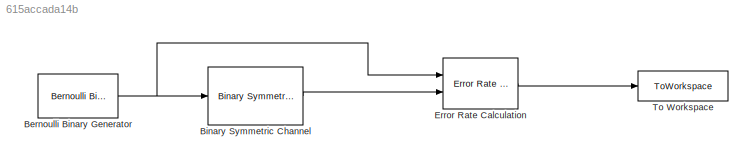
MODEL slx_615accada14b
KIND model
CONFIG AbsTol = auto
CONFIG EnableMultiTasking = off
CONFIG FixedStep = auto
CONFIG MaxStep = auto
CONFIG MinStep = auto
CONFIG RelTol = 1e-3
CONFIG SampleTimeConstraint = Unconstrained
CONFIG Solver = VariableStepAuto
CONFIG SolverName = VariableStepAuto
CONFIG StartTime = 0.0
CONFIG StopTime = 10.0
BLOCK [Reference] Bernoulli Binary Generator  REF=commrandsrc3/Bernoulli Binary
Generator
  Ports = [0, 1]
  SourceBlock = commrandsrc3/Bernoulli Binary\nGenerator
  SourceProductBaseCode = CM
  SourceProductName = Communications Toolbox
  SourceType = Bernoulli Binary Generator
BLOCK [Reference] Binary Symmetric Channel  REF=commchan3/Binary Symmetric
Channel
  Ports = [1, 1]
  SourceBlock = commchan3/Binary Symmetric\nChannel
  SourceProductBaseCode = CM
  SourceProductName = Communications Toolbox
  SourceType = Binary Symmetric Channel
BLOCK [Reference] Error Rate Calculation  REF=commsink2/Error Rate
Calculation
  Ports = [2, 1]
  SourceBlock = commsink2/Error Rate\nCalculation
  SourceProductBaseCode = CM
  SourceProductName = Communications Toolbox
  SourceType = Error Rate Calculation
BLOCK [ToWorkspace] To Workspace
  FixptAsFi = on
  MaxDataPoints = inf
  Ports = [1]
  SampleTime = -1
  SaveFormat = Timeseries
  VariableName = ERRout
NET Bernoulli Binary Generator:1 -> Binary Symmetric Channel:1, Error Rate Calculation:1
LINE Binary Symmetric Channel:1 -> Error Rate Calculation:2
LINE Error Rate Calculation:1 -> To Workspace:1
note: NET lines group one-source signal fan-out (src -> all destinations, sorted); 1:1 wires keep LINE
